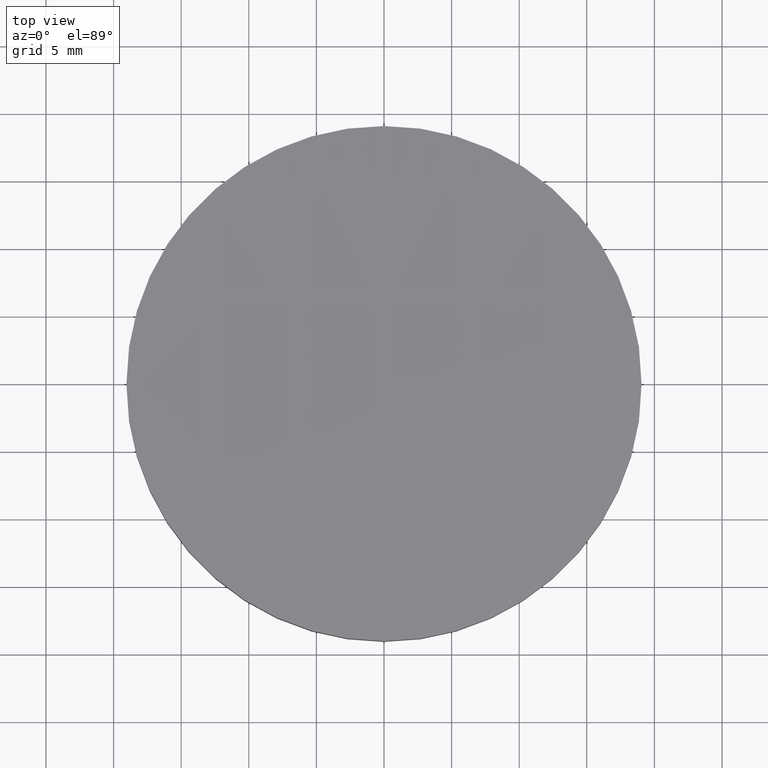
[diagram: clean part render]
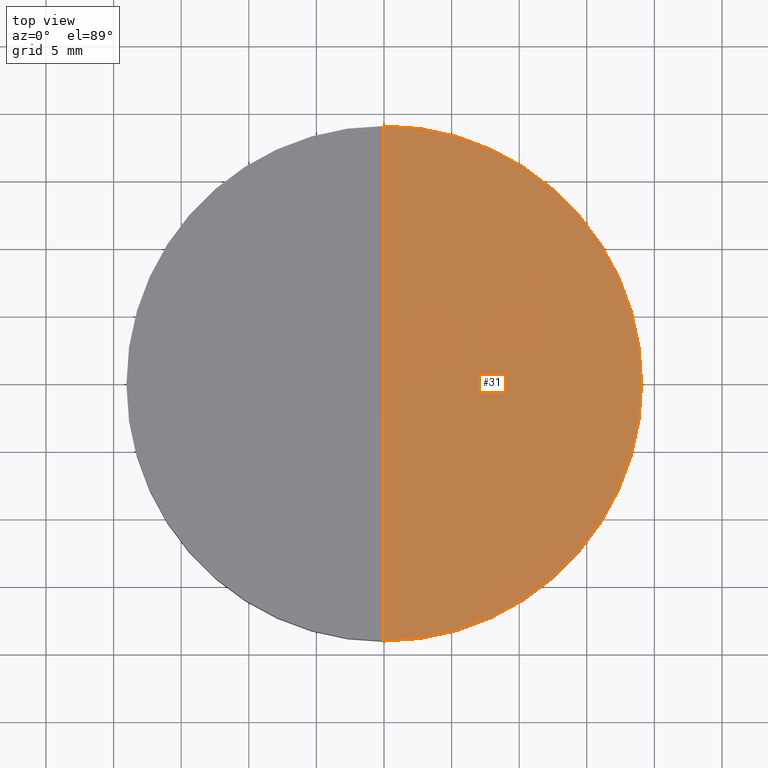
[diagram: same view with one face highlighted and labeled with its STEP entity id]
A machine part, top view. The second image highlights one B-rep face of the part: STEP entity #31.
In plain terms, the highlighted face is a freeform B-spline surface patch.
Its self-contained STEP definition (entity closure, byte-faithful):
#9 = VERTEX_POINT ( 'NONE', #79 ) ;
#13 = CARTESIAN_POINT ( 'NONE',  ( 12.76442145578985400, -19.27840483950794900, 4.349651678797221700 ) ) ;
#16 = CARTESIAN_POINT ( 'NONE',  ( 6.394202543936498500, 6.431656436612435400, 5.163252581776818700 ) ) ;
#31 = ADVANCED_FACE ( 'NONE', ( #118 ), #193, .T. ) ;
#35 = EDGE_CURVE ( 'NONE', #9, #209, #161, .T. ) ;
#39 = CARTESIAN_POINT ( 'NONE',  ( 1.353084311261909500E-013, -6.431656436612464700, 5.163252581776824000 ) ) ;
#55 = CARTESIAN_POINT ( 'NONE',  ( 19.13952497321534100, 19.27840483950791800, 4.027732086510638100 ) ) ;
#67 = AXIS2_PLACEMENT_3D ( 'NONE', #271, #292, #203 ) ;
#79 = CARTESIAN_POINT ( 'NONE',  ( 3.959762838265699500E-014, -19.04999999999978000, 4.522196320584167300 ) ) ;
#92 = CARTESIAN_POINT ( 'NONE',  ( -4.662936703425659800E-015, -8.881784197001250400E-016, 4.522196320584130000 ) ) ;
#101 = CARTESIAN_POINT ( 'NONE',  ( 1.283695372222837200E-013, -19.27840483950794900, 4.510662705073443100 ) ) ;
#102 = ORIENTED_EDGE ( 'NONE', *, *, #294, .F. ) ;
#117 = AXIS2_PLACEMENT_3D ( 'NONE', #225, #295, #159 ) ;
#118 = FACE_OUTER_BOUND ( 'NONE', #169, .T. ) ;
#124 = CIRCLE ( 'NONE', #269, 19.05000000000000100 ) ;
#151 = CARTESIAN_POINT ( 'NONE',  ( 12.78637059462209000, 6.431656436612433600, 5.001964688007503500 ) ) ;
#159 = DIRECTION ( 'NONE',  ( 1.000000000000000000, 0.0000000000000000000, 0.0000000000000000000 ) ) ;
#161 = CIRCLE ( 'NONE', #67, 380.0000000000000000 ) ;
#169 = EDGE_LOOP ( 'NONE', ( #170, #283, #102 ) ) ;
#170 = ORIENTED_EDGE ( 'NONE', *, *, #35, .F. ) ;
#172 = CARTESIAN_POINT ( 'NONE',  ( 12.78637059462208300, -6.431656436612468200, 5.001964688007505300 ) ) ;
#182 = CARTESIAN_POINT ( 'NONE',  ( 6.383226228310448400, 19.27840483950791800, 4.510662705073441400 ) ) ;
#193 =( BOUNDED_SURFACE ( )  B_SPLINE_SURFACE ( 3, 3, ( 
 ( #216, #13, #236, #101 ),
 ( #287, #172, #265, #39 ),
 ( #197, #151, #16, #196 ),
 ( #55, #289, #182, #245 ) ),
 .UNSPECIFIED., .F., .F., .F. ) 
 B_SPLINE_SURFACE_WITH_KNOTS ( ( 4, 4 ),
 ( 4, 4 ),
 ( 0.0000000000000000000, 1.000000000000000000 ),
 ( 0.0000000000000000000, 1.000000000000000000 ),
 .UNSPECIFIED. ) 
 GEOMETRIC_REPRESENTATION_ITEM ( )  RATIONAL_B_SPLINE_SURFACE ( (
 ( 1.000000000000000000, 0.9997878814716106800, 0.9997878814716106800, 1.000000000000000000),
 ( 0.9991415135176726600, 0.9989295770901726000, 0.9989295770901726000, 0.9991415135176726600),
 ( 0.9991415135176726600, 0.9989295770901726000, 0.9989295770901726000, 0.9991415135176726600),
 ( 1.000000000000000000, 0.9997878814716106800, 0.9997878814716106800, 1.000000000000000000) ) ) 
 REPRESENTATION_ITEM ( '' )  SURFACE ( )  );
#196 = CARTESIAN_POINT ( 'NONE',  ( 1.422473250300981800E-013, 6.431656436612438000, 5.163252581776821300 ) ) ;
#197 = CARTESIAN_POINT ( 'NONE',  ( 19.17243646021652700, 6.431656436612431800, 4.679491536920910000 ) ) ;
#203 = DIRECTION ( 'NONE',  ( -3.058797472403380500E-016, -1.000000000000000000, 2.921639538487254300E-016 ) ) ;
#204 = CIRCLE ( 'NONE', #117, 19.05000000000000100 ) ;
#209 = VERTEX_POINT ( 'NONE', #249 ) ;
#211 = VERTEX_POINT ( 'NONE', #253 ) ;
#214 = EDGE_CURVE ( 'NONE', #211, #9, #204, .T. ) ;
#216 = CARTESIAN_POINT ( 'NONE',  ( 19.13952497321532700, -19.27840483950795700, 4.027732086510638100 ) ) ;
#225 = CARTESIAN_POINT ( 'NONE',  ( -4.662936703425659800E-015, -8.881784197001250400E-016, 4.522196320584130000 ) ) ;
#236 = CARTESIAN_POINT ( 'NONE',  ( 6.383226228310434200, -19.27840483950794900, 4.510662705073441400 ) ) ;
#245 = CARTESIAN_POINT ( 'NONE',  ( 1.422473250300981800E-013, 19.27840483950792500, 4.510662705073443100 ) ) ;
#249 = CARTESIAN_POINT ( 'NONE',  ( 5.125164675251374400E-014, 19.04999999999980500, 4.522196320584167300 ) ) ;
#251 = DIRECTION ( 'NONE',  ( -0.0000000000000000000, -0.0000000000000000000, -1.000000000000000000 ) ) ;
#253 = CARTESIAN_POINT ( 'NONE',  ( 19.04999999999999700, -8.881784197001250400E-016, 4.522196320584130000 ) ) ;
#265 = CARTESIAN_POINT ( 'NONE',  ( 6.394202543936491300, -6.431656436612465600, 5.163252581776821300 ) ) ;
#269 = AXIS2_PLACEMENT_3D ( 'NONE', #92, #251, #275 ) ;
#271 = CARTESIAN_POINT ( 'NONE',  ( 2.842170943040400100E-014, 2.842170943040400100E-014, -375.0000000000000000 ) ) ;
#275 = DIRECTION ( 'NONE',  ( 1.000000000000000000, -8.881784197001252300E-016, 0.0000000000000000000 ) ) ;
#283 = ORIENTED_EDGE ( 'NONE', *, *, #214, .F. ) ;
#287 = CARTESIAN_POINT ( 'NONE',  ( 19.17243646021652000, -6.431656436612470000, 4.679491536920912700 ) ) ;
#289 = CARTESIAN_POINT ( 'NONE',  ( 12.76442145578986900, 19.27840483950791800, 4.349651678797221700 ) ) ;
#292 = DIRECTION ( 'NONE',  ( -1.000000000000000000, 3.058797472403380000E-016, 4.480087937417740100E-017 ) ) ;
#294 = EDGE_CURVE ( 'NONE', #209, #211, #124, .T. ) ;
#295 = DIRECTION ( 'NONE',  ( -0.0000000000000000000, -0.0000000000000000000, -1.000000000000000000 ) ) ;